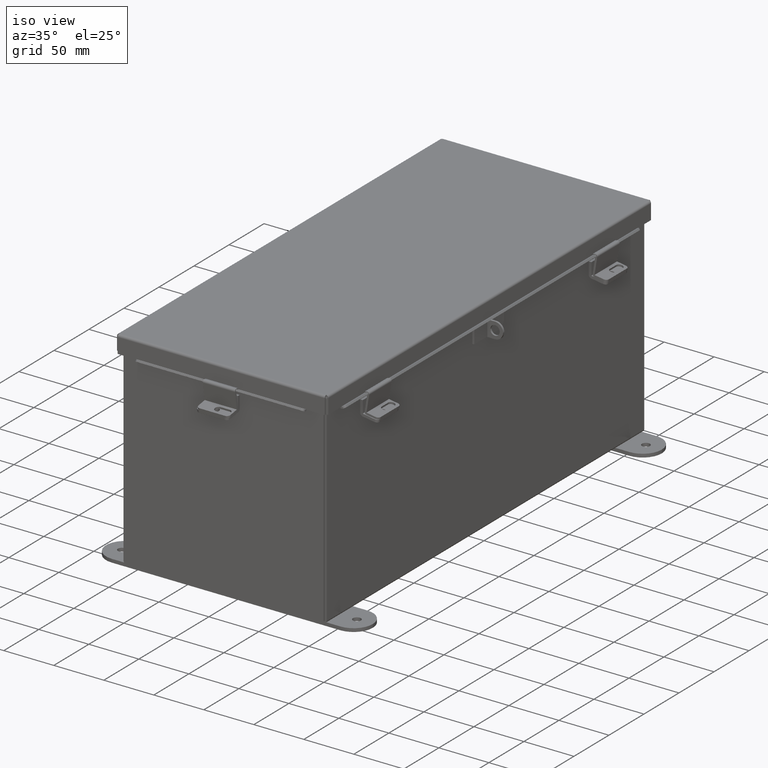
[diagram: clean part render]
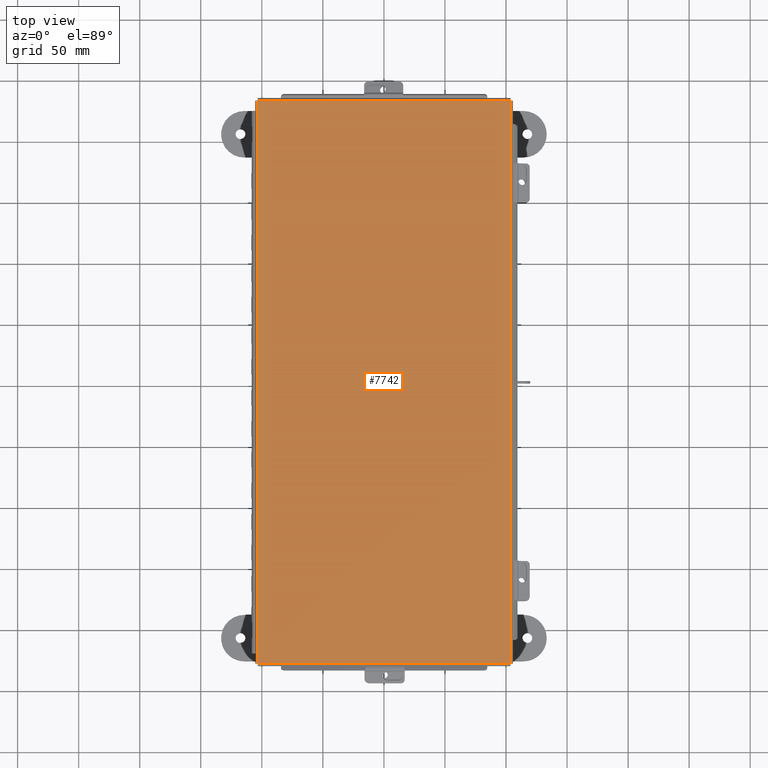
[diagram: tour spotlight — one face highlighted and labeled with its STEP entity id]
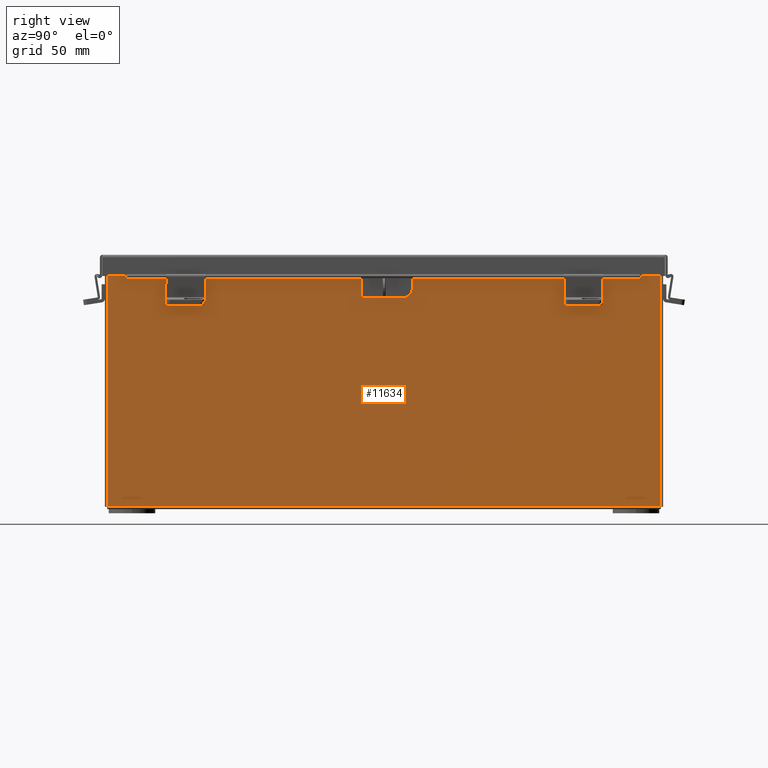
[diagram: tour spotlight — one face highlighted and labeled with its STEP entity id]
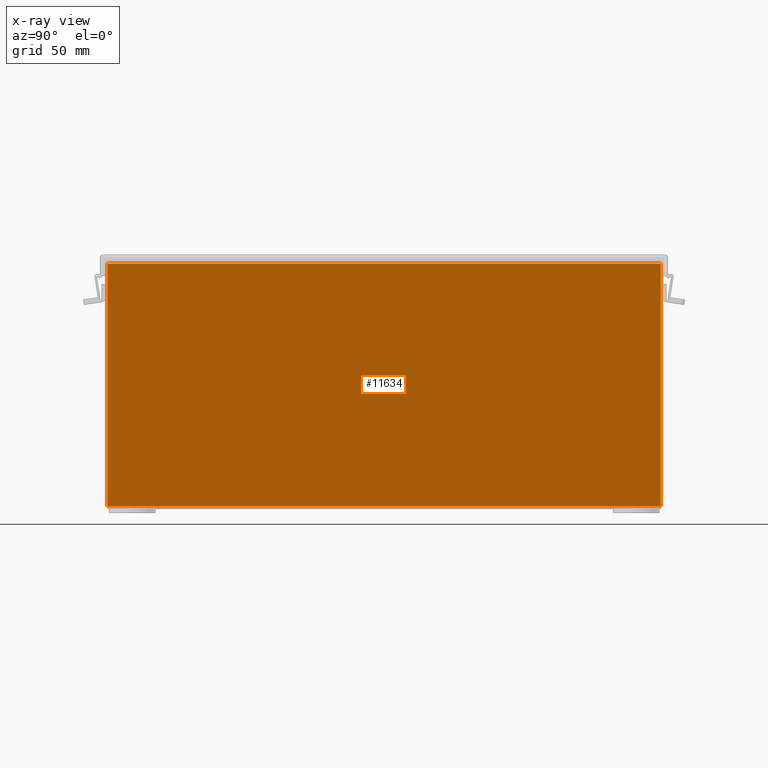
[diagram: x-ray of the same camera — body ghosted, this tour face saturated]
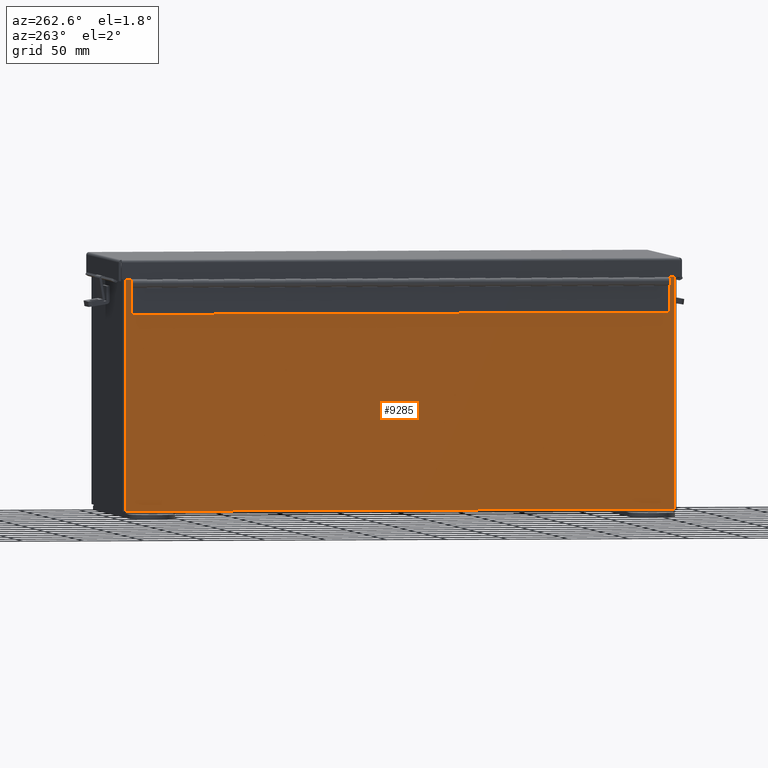
[diagram: tour spotlight — one face highlighted and labeled with its STEP entity id]
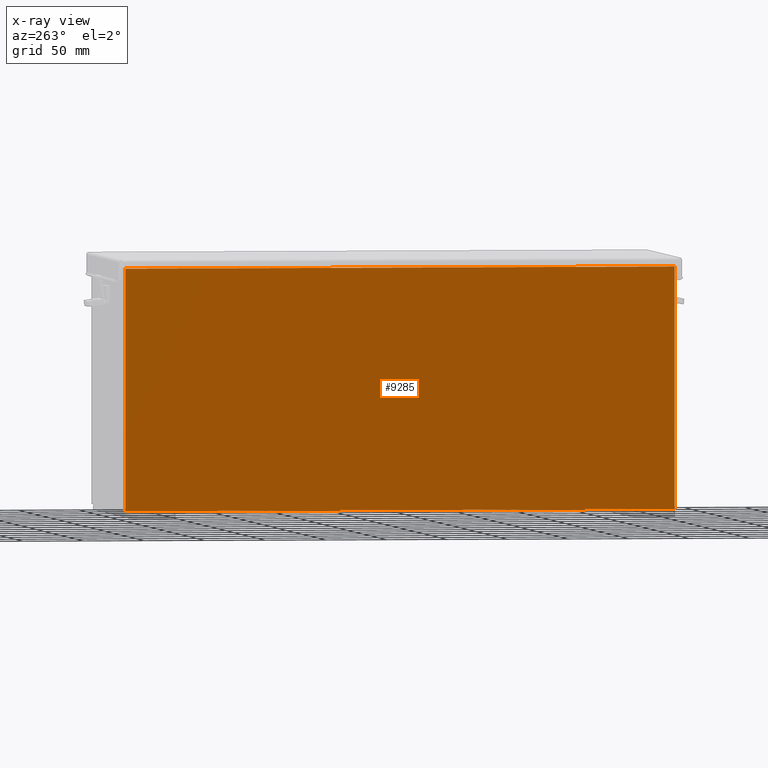
[diagram: x-ray of the same camera — body ghosted, this tour face saturated]
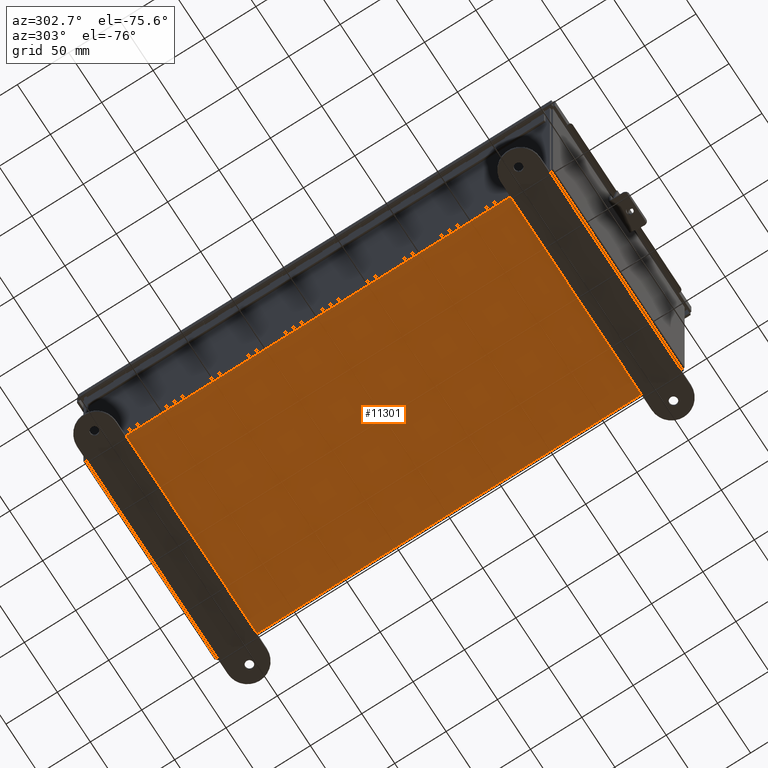
[diagram: tour spotlight — one face highlighted and labeled with its STEP entity id]
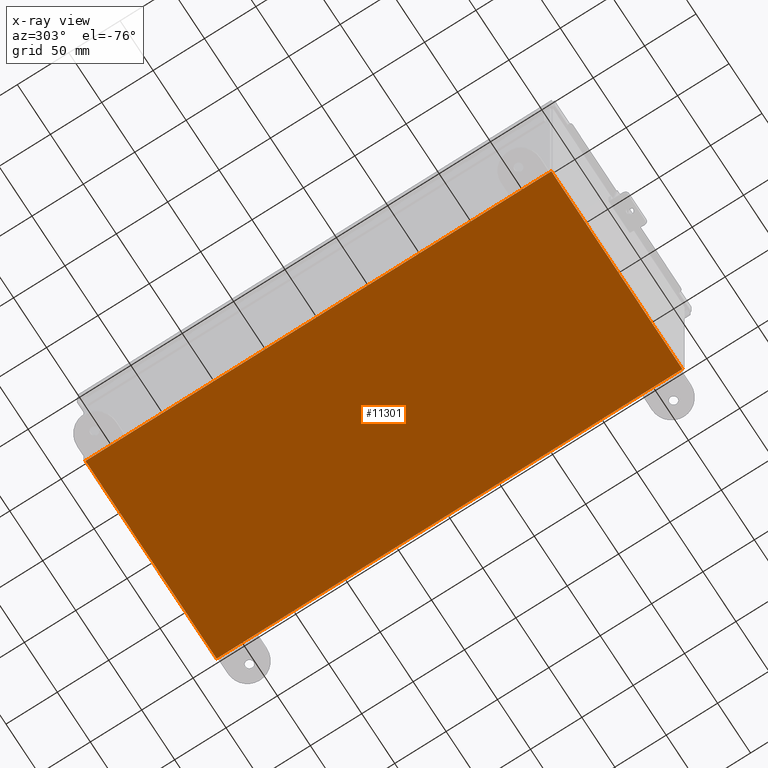
[diagram: x-ray of the same camera — body ghosted, this tour face saturated]
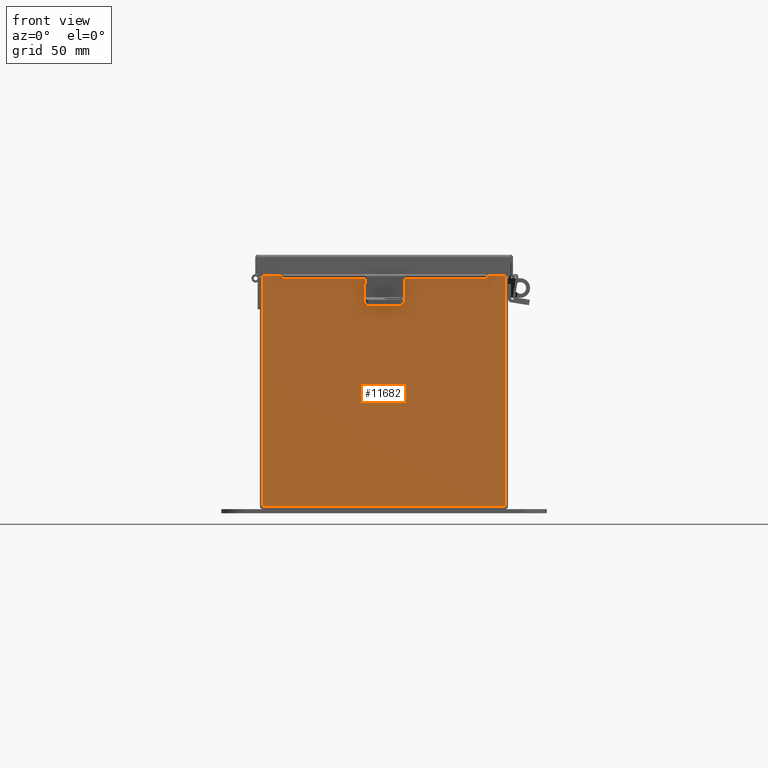
[diagram: tour spotlight — one face highlighted and labeled with its STEP entity id]
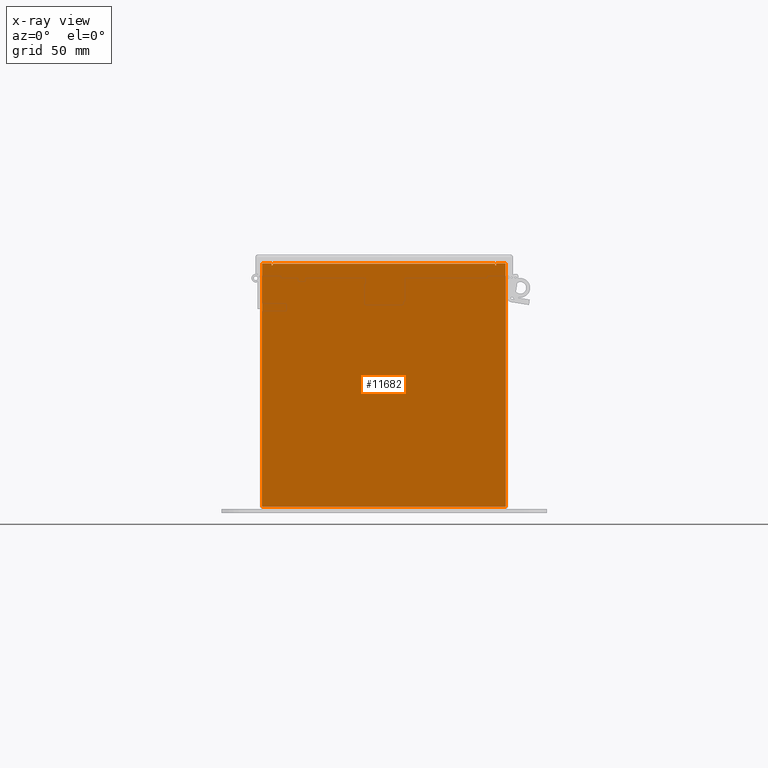
[diagram: x-ray of the same camera — body ghosted, this tour face saturated]
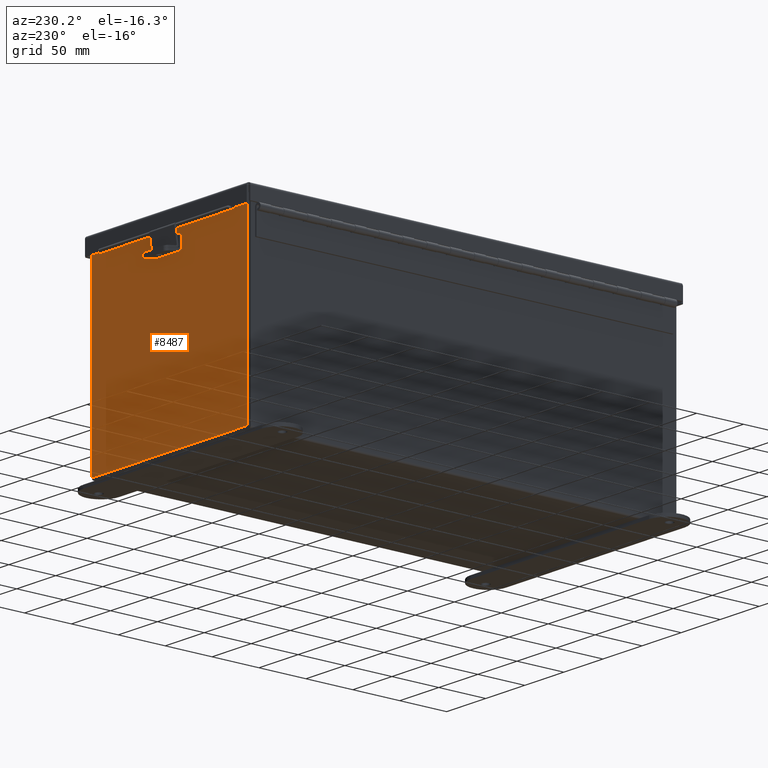
[diagram: tour spotlight — one face highlighted and labeled with its STEP entity id]
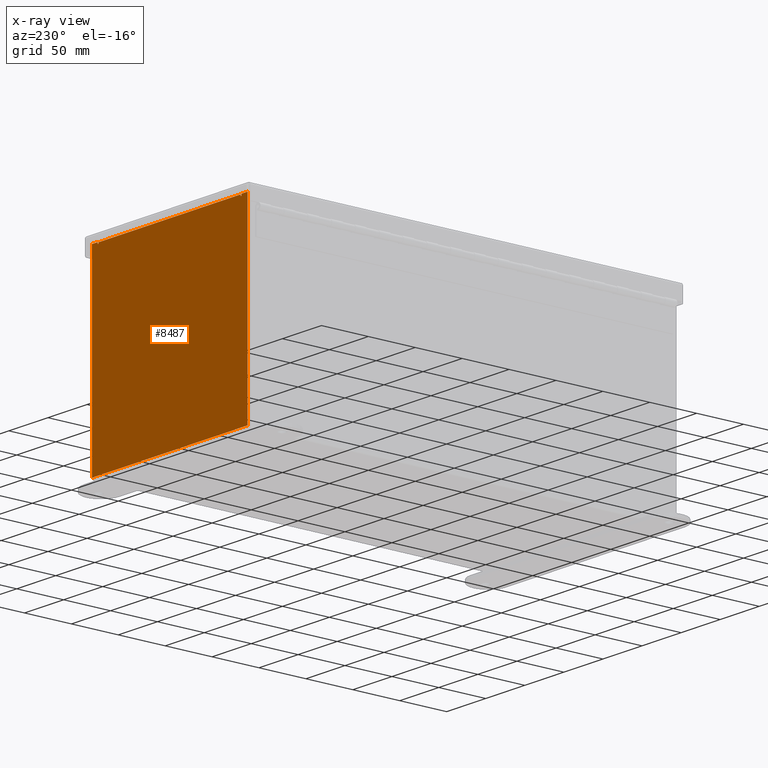
[diagram: x-ray of the same camera — body ghosted, this tour face saturated]
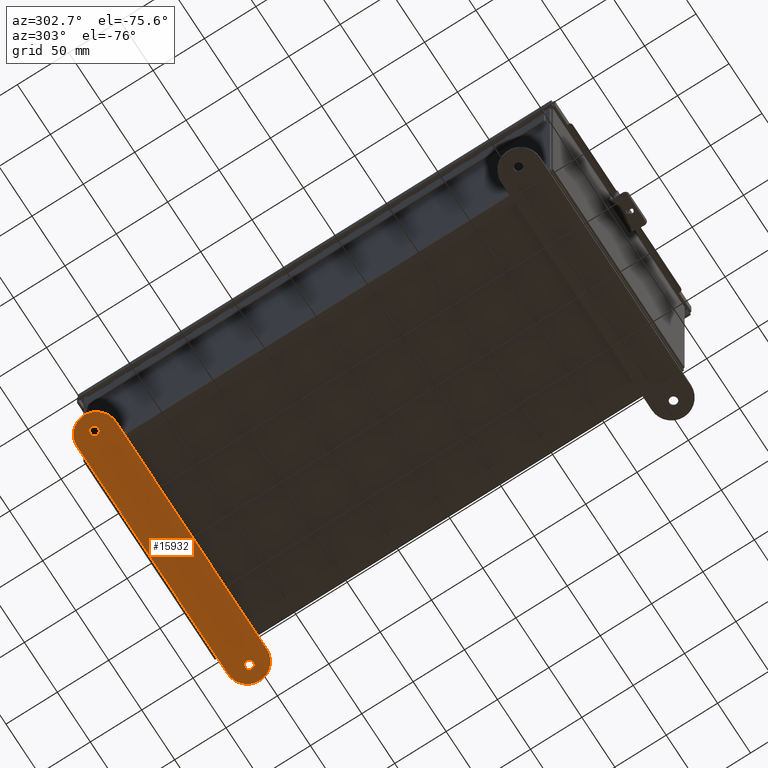
[diagram: tour spotlight — one face highlighted and labeled with its STEP entity id]
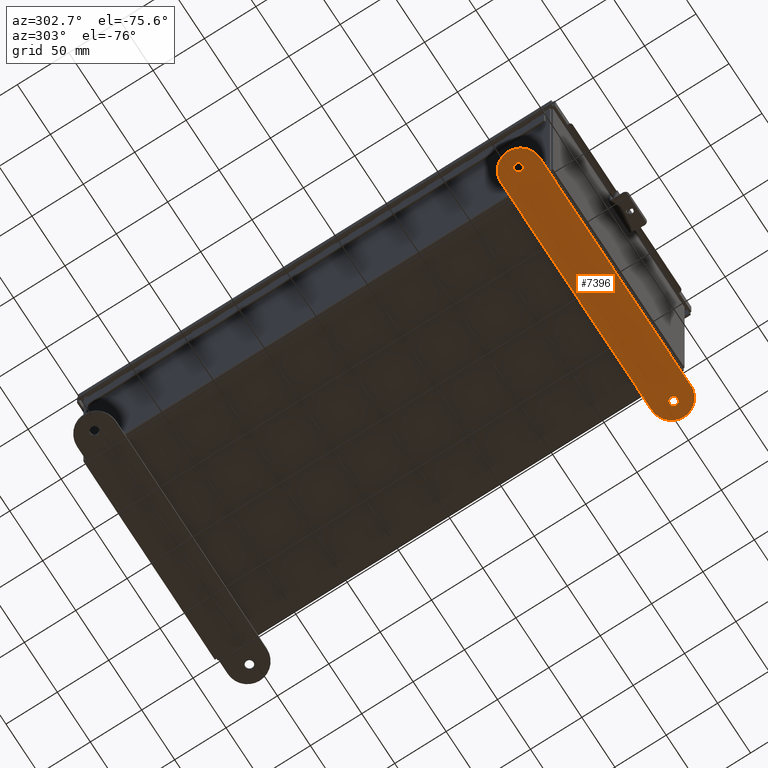
[diagram: tour spotlight — one face highlighted and labeled with its STEP entity id]
A machine part: a face-by-face anatomy tour. The part has 742 B-rep faces; the first image is the clean iso view, then the 8 largest visible faces are spotlighted one at a time (largest first), each with its STEP entity span.

Face 1 — top view, entity #7742. In plain terms, the highlighted planar face has unit normal (-0, -0, 1).
Definition (entity closure, byte-faithful):
#16 = DIRECTION ( 'NONE',  ( 1.313768580817176200E-059, 1.027984367116126100E-029, -1.000000000000000000 ) ) ;
#221 = VECTOR ( 'NONE', #13620, 39.37007874015748100 ) ;
#1895 = EDGE_CURVE ( 'NONE', #8157, #6622, #10643, .T. ) ;
#2112 = CARTESIAN_POINT ( 'NONE',  ( -4.068550000000029400, -9.074478932188133800, -0.07470000000000015500 ) ) ;
#3883 = CARTESIAN_POINT ( 'NONE',  ( 4.074478932188159600, -9.068550000000000100, -0.07469999999999797600 ) ) ;
#4354 = EDGE_CURVE ( 'NONE', #15975, #8157, #10218, .T. ) ;
#4751 = ORIENTED_EDGE ( 'NONE', *, *, #4354, .T. ) ;
#5779 = CARTESIAN_POINT ( 'NONE',  ( 4.068550000000024100, -9.068550000000000100, -0.07469999999999907300 ) ) ;
#6622 = VERTEX_POINT ( 'NONE', #13745 ) ;
#7559 = VECTOR ( 'NONE', #11116, 39.37007874015748100 ) ;
#7701 = VERTEX_POINT ( 'NONE', #8787 ) ;
#7742 = ADVANCED_FACE ( 'NONE', ( #10546 ), #19363, .T. ) ;
#8114 = LINE ( 'NONE', #12102, #221 ) ;
#8157 = VERTEX_POINT ( 'NONE', #8327 ) ;
#8327 = CARTESIAN_POINT ( 'NONE',  ( -4.068550000000025000, -9.068550000000000100, -0.07470000000000015500 ) ) ;
#8787 = CARTESIAN_POINT ( 'NONE',  ( 4.068550000000023200, 9.068550000000000100, -0.07469999999999907300 ) ) ;
#9385 = ORIENTED_EDGE ( 'NONE', *, *, #1895, .T. ) ;
#9623 = CARTESIAN_POINT ( 'NONE',  ( 4.068550000000023200, 9.074478932188133800, -0.07469999999999907300 ) ) ;
#10218 = LINE ( 'NONE', #3883, #13721 ) ;
#10415 = DIRECTION ( 'NONE',  ( -1.000000000000000000, 1.278004435517613800E-030, 0.0000000000000000000 ) ) ;
#10546 = FACE_OUTER_BOUND ( 'NONE', #18780, .T. ) ;
#10643 = LINE ( 'NONE', #2112, #13683 ) ;
#11116 = DIRECTION ( 'NONE',  ( 1.278004435517692100E-030, -1.000000000000000000, 1.018123605800868400E-029 ) ) ;
#11492 = LINE ( 'NONE', #9623, #7559 ) ;
#11965 = DIRECTION ( 'NONE',  ( -1.278004435517692100E-030, 1.000000000000000000, -1.018123605800868400E-029 ) ) ;
#12102 = CARTESIAN_POINT ( 'NONE',  ( -4.074478932188160500, 9.068550000000000100, -0.07469999999999907300 ) ) ;
#12636 = ORIENTED_EDGE ( 'NONE', *, *, #13232, .T. ) ;
#12859 = EDGE_CURVE ( 'NONE', #6622, #7701, #8114, .T. ) ;
#13232 = EDGE_CURVE ( 'NONE', #7701, #15975, #11492, .T. ) ;
#13620 = DIRECTION ( 'NONE',  ( 1.000000000000000000, -1.278004435517613800E-030, -0.0000000000000000000 ) ) ;
#13683 = VECTOR ( 'NONE', #11965, 39.37007874015748100 ) ;
#13721 = VECTOR ( 'NONE', #18928, 39.37007874015748100 ) ;
#13745 = CARTESIAN_POINT ( 'NONE',  ( -4.068550000000025000, 9.068550000000000100, -0.07469999999999033000 ) ) ;
#14869 = CARTESIAN_POINT ( 'NONE',  ( 4.268512490100411300E-018, 0.0000000000000000000, -0.07470000000000015500 ) ) ;
#15953 = ORIENTED_EDGE ( 'NONE', *, *, #12859, .T. ) ;
#15975 = VERTEX_POINT ( 'NONE', #5779 ) ;
#16732 = AXIS2_PLACEMENT_3D ( 'NONE', #14869, #16, #10415 ) ;
#18780 = EDGE_LOOP ( 'NONE', ( #15953, #12636, #4751, #9385 ) ) ;
#18928 = DIRECTION ( 'NONE',  ( -1.000000000000000000, 1.278004435517613800E-030, -0.0000000000000000000 ) ) ;
#19363 = PLANE ( 'NONE',  #16732 ) ;

Face 2 — right view, entity #11634. An x-ray twin of the same camera follows (body ghosted, this face saturated) — the face is partly hidden behind the body. In plain terms, the highlighted planar face has unit normal (-1, 0, 0).
Definition (entity closure, byte-faithful):
#96 = VECTOR ( 'NONE', #15876, 39.37007874015748100 ) ;
#508 = EDGE_CURVE ( 'NONE', #856, #15778, #8825, .T. ) ;
#528 = LINE ( 'NONE', #10196, #7958 ) ;
#716 = AXIS2_PLACEMENT_3D ( 'NONE', #7873, #6426, #16880 ) ;
#856 = VERTEX_POINT ( 'NONE', #18528 ) ;
#1286 = LINE ( 'NONE', #18946, #16668 ) ;
#2458 = CARTESIAN_POINT ( 'NONE',  ( 4.000000000000000900, 8.925299999999998200, 0.01299999999999984300 ) ) ;
#2638 = ORIENTED_EDGE ( 'NONE', *, *, #9673, .T. ) ;
#2959 = CARTESIAN_POINT ( 'NONE',  ( 4.000000000000027500, -8.925300000000000000, 7.837599999999999200 ) ) ;
#5332 = VECTOR ( 'NONE', #10851, 39.37007874015748100 ) ;
#5442 = DIRECTION ( 'NONE',  ( -0.0000000000000000000, -1.000000000000000000, -0.0000000000000000000 ) ) ;
#5975 = CARTESIAN_POINT ( 'NONE',  ( 4.000000000000000900, -8.925300000000001800, 0.01299999999999984300 ) ) ;
#6426 = DIRECTION ( 'NONE',  ( -1.000000000000000000, 0.0000000000000000000, 3.479795166820706300E-015 ) ) ;
#6766 = ORIENTED_EDGE ( 'NONE', *, *, #13406, .F. ) ;
#7873 = CARTESIAN_POINT ( 'NONE',  ( 4.000000000000000900, 0.0000000000000000000, -1.417999849211356600E-014 ) ) ;
#7958 = VECTOR ( 'NONE', #11663, 39.37007874015748100 ) ;
#8400 = FACE_OUTER_BOUND ( 'NONE', #9361, .T. ) ;
#8435 = CARTESIAN_POINT ( 'NONE',  ( 4.000000000000000900, -8.925300000000001800, -1.417999849211356600E-014 ) ) ;
#8825 = LINE ( 'NONE', #9913, #5332 ) ;
#9361 = EDGE_LOOP ( 'NONE', ( #11269, #2638, #6766, #9788 ) ) ;
#9673 = EDGE_CURVE ( 'NONE', #15778, #16015, #11941, .T. ) ;
#9788 = ORIENTED_EDGE ( 'NONE', *, *, #15209, .T. ) ;
#9913 = CARTESIAN_POINT ( 'NONE',  ( 4.000000000000027500, 8.925299999999996500, 7.837599999999999200 ) ) ;
#10196 = CARTESIAN_POINT ( 'NONE',  ( 4.000000000000000900, 8.925299999999998200, -1.293359284500424600E-014 ) ) ;
#10851 = DIRECTION ( 'NONE',  ( -0.0000000000000000000, -1.000000000000000000, -0.0000000000000000000 ) ) ;
#11269 = ORIENTED_EDGE ( 'NONE', *, *, #508, .T. ) ;
#11634 = ADVANCED_FACE ( 'NONE', ( #8400 ), #13863, .F. ) ;
#11663 = DIRECTION ( 'NONE',  ( 3.479795166820706300E-015, -1.391918066728282600E-016, 1.000000000000000000 ) ) ;
#11869 = VERTEX_POINT ( 'NONE', #2458 ) ;
#11941 = LINE ( 'NONE', #8435, #96 ) ;
#13406 = EDGE_CURVE ( 'NONE', #11869, #16015, #1286, .T. ) ;
#13863 = PLANE ( 'NONE',  #716 ) ;
#15209 = EDGE_CURVE ( 'NONE', #11869, #856, #528, .T. ) ;
#15778 = VERTEX_POINT ( 'NONE', #2959 ) ;
#15876 = DIRECTION ( 'NONE',  ( -3.479795166820706300E-015, 0.0000000000000000000, -1.000000000000000000 ) ) ;
#16015 = VERTEX_POINT ( 'NONE', #5975 ) ;
#16668 = VECTOR ( 'NONE', #5442, 39.37007874015748100 ) ;
#16880 = DIRECTION ( 'NONE',  ( 3.479795166820706300E-015, 0.0000000000000000000, 1.000000000000000000 ) ) ;
#18528 = CARTESIAN_POINT ( 'NONE',  ( 4.000000000000027500, 8.925299999999989400, 7.837599999999999200 ) ) ;
#18946 = CARTESIAN_POINT ( 'NONE',  ( 4.000000000000000900, -8.925300000000001800, 0.01299999999999984300 ) ) ;

Face 3 — auxiliary view, entity #9285. An x-ray twin of the same camera follows (body ghosted, this face saturated) — the face is partly hidden behind the body. In plain terms, the highlighted planar face has unit normal (1, 0, 0).
Definition (entity closure, byte-faithful):
#585 = ORIENTED_EDGE ( 'NONE', *, *, #5208, .F. ) ;
#894 = VECTOR ( 'NONE', #17311, 39.37007874015748100 ) ;
#1355 = LINE ( 'NONE', #10051, #894 ) ;
#1527 = CARTESIAN_POINT ( 'NONE',  ( -3.999999999999999600, 8.925299999999996500, 0.01299999999999984300 ) ) ;
#1547 = EDGE_CURVE ( 'NONE', #18662, #15011, #18892, .T. ) ;
#1675 = FACE_OUTER_BOUND ( 'NONE', #9807, .T. ) ;
#1978 = EDGE_CURVE ( 'NONE', #15011, #12941, #1355, .T. ) ;
#2110 = VECTOR ( 'NONE', #4114, 39.37007874015748100 ) ;
#3016 = DIRECTION ( 'NONE',  ( 1.065092651769884500E-031, 1.000000000000000000, -3.060791226809479400E-017 ) ) ;
#3637 = EDGE_CURVE ( 'NONE', #11857, #18662, #14448, .T. ) ;
#3992 = CARTESIAN_POINT ( 'NONE',  ( -4.000000000000027500, -8.925299999999996500, 7.837599999999999200 ) ) ;
#4055 = CARTESIAN_POINT ( 'NONE',  ( -3.999999999999999600, -8.925299999999998200, -1.293359284500424600E-014 ) ) ;
#4114 = DIRECTION ( 'NONE',  ( -3.479795166820706300E-015, 1.391918066728282600E-016, 1.000000000000000000 ) ) ;
#4587 = VECTOR ( 'NONE', #3016, 39.37007874015748100 ) ;
#5208 = EDGE_CURVE ( 'NONE', #11857, #12941, #8551, .T. ) ;
#5667 = DIRECTION ( 'NONE',  ( 0.0000000000000000000, 1.000000000000000000, 0.0000000000000000000 ) ) ;
#6103 = PLANE ( 'NONE',  #9476 ) ;
#6367 = ORIENTED_EDGE ( 'NONE', *, *, #1547, .T. ) ;
#8551 = LINE ( 'NONE', #1527, #4587 ) ;
#9094 = DIRECTION ( 'NONE',  ( 3.479795166820705900E-015, 0.0000000000000000000, -1.000000000000000000 ) ) ;
#9285 = ADVANCED_FACE ( 'NONE', ( #1675 ), #6103, .F. ) ;
#9476 = AXIS2_PLACEMENT_3D ( 'NONE', #16546, #18058, #9094 ) ;
#9807 = EDGE_LOOP ( 'NONE', ( #6367, #19321, #585, #14357 ) ) ;
#9881 = CARTESIAN_POINT ( 'NONE',  ( -3.999999999999999600, -8.925299999999998200, 0.01300000000000039000 ) ) ;
#10051 = CARTESIAN_POINT ( 'NONE',  ( -3.999999999999999600, 8.925299999999996500, -1.417999849211356600E-014 ) ) ;
#11857 = VERTEX_POINT ( 'NONE', #9881 ) ;
#12657 = CARTESIAN_POINT ( 'NONE',  ( -4.000000000000026600, 8.925299999999996500, 7.837599999999999200 ) ) ;
#12941 = VERTEX_POINT ( 'NONE', #14997 ) ;
#14357 = ORIENTED_EDGE ( 'NONE', *, *, #3637, .T. ) ;
#14448 = LINE ( 'NONE', #4055, #2110 ) ;
#14872 = VECTOR ( 'NONE', #5667, 39.37007874015748100 ) ;
#14997 = CARTESIAN_POINT ( 'NONE',  ( -3.999999999999999600, 8.925299999999996500, 0.01300000000000011600 ) ) ;
#15011 = VERTEX_POINT ( 'NONE', #12657 ) ;
#15049 = CARTESIAN_POINT ( 'NONE',  ( -4.000000000000027500, -8.925299999999992900, 7.837599999999999200 ) ) ;
#16546 = CARTESIAN_POINT ( 'NONE',  ( -3.999999999999999600, 0.0000000000000000000, -1.417999849211356600E-014 ) ) ;
#17311 = DIRECTION ( 'NONE',  ( 3.479795166820706300E-015, 0.0000000000000000000, -1.000000000000000000 ) ) ;
#18058 = DIRECTION ( 'NONE',  ( 1.000000000000000000, 0.0000000000000000000, 3.479795166820705900E-015 ) ) ;
#18662 = VERTEX_POINT ( 'NONE', #15049 ) ;
#18892 = LINE ( 'NONE', #3992, #14872 ) ;
#19321 = ORIENTED_EDGE ( 'NONE', *, *, #1978, .T. ) ;

Face 4 — auxiliary view, entity #11301. An x-ray twin of the same camera follows (body ghosted, this face saturated) — the face is partly hidden behind the body. In plain terms, the highlighted planar face has unit normal (0, 0, -1).
Definition (entity closure, byte-faithful):
#887 = VECTOR ( 'NONE', #12413, 39.37007874015748100 ) ;
#964 = LINE ( 'NONE', #9012, #8383 ) ;
#1335 = DIRECTION ( 'NONE',  ( -1.000000000000000000, 0.0000000000000000000, -0.0000000000000000000 ) ) ;
#2077 = CARTESIAN_POINT ( 'NONE',  ( -3.999999999999999600, 8.925299999999998200, -0.07470000000000000300 ) ) ;
#2333 = CARTESIAN_POINT ( 'NONE',  ( 3.912300000000000100, 8.925300000000000000, -0.07469999999999994700 ) ) ;
#2826 = CARTESIAN_POINT ( 'NONE',  ( -3.912299999999999200, 8.925299999999998200, -0.07470000000000000300 ) ) ;
#3332 = LINE ( 'NONE', #2333, #6797 ) ;
#3564 = DIRECTION ( 'NONE',  ( -1.000000000000000000, -0.0000000000000000000, -0.0000000000000000000 ) ) ;
#5270 = LINE ( 'NONE', #12475, #887 ) ;
#5439 = EDGE_CURVE ( 'NONE', #15790, #17820, #5270, .T. ) ;
#5722 = DIRECTION ( 'NONE',  ( 0.0000000000000000000, 0.0000000000000000000, -1.000000000000000000 ) ) ;
#6605 = ORIENTED_EDGE ( 'NONE', *, *, #10548, .T. ) ;
#6797 = VECTOR ( 'NONE', #11225, 39.37007874015748100 ) ;
#7381 = CARTESIAN_POINT ( 'NONE',  ( -3.912299999999999200, -8.925299999999996500, -0.07469999999999966900 ) ) ;
#8091 = CARTESIAN_POINT ( 'NONE',  ( 3.912300000000000100, 8.925299999999998200, -0.07469999999999994700 ) ) ;
#8383 = VECTOR ( 'NONE', #14969, 39.37007874015748100 ) ;
#9012 = CARTESIAN_POINT ( 'NONE',  ( -3.999999999999999600, -8.925300000000001800, -0.07470000000000000300 ) ) ;
#9472 = EDGE_CURVE ( 'NONE', #17631, #17820, #15254, .T. ) ;
#10231 = ORIENTED_EDGE ( 'NONE', *, *, #9472, .F. ) ;
#10383 = VERTEX_POINT ( 'NONE', #17917 ) ;
#10548 = EDGE_CURVE ( 'NONE', #17631, #10383, #3332, .T. ) ;
#11225 = DIRECTION ( 'NONE',  ( -0.0000000000000000000, -1.000000000000000000, -0.0000000000000000000 ) ) ;
#11301 = ADVANCED_FACE ( 'NONE', ( #18002 ), #17693, .T. ) ;
#11460 = EDGE_LOOP ( 'NONE', ( #10231, #6605, #13668, #18429 ) ) ;
#12165 = EDGE_CURVE ( 'NONE', #15790, #10383, #964, .T. ) ;
#12413 = DIRECTION ( 'NONE',  ( -0.0000000000000000000, 1.000000000000000000, -0.0000000000000000000 ) ) ;
#12475 = CARTESIAN_POINT ( 'NONE',  ( -3.912299999999999200, -8.925299999999998200, -0.07469999999999966900 ) ) ;
#13668 = ORIENTED_EDGE ( 'NONE', *, *, #12165, .F. ) ;
#14414 = AXIS2_PLACEMENT_3D ( 'NONE', #19105, #5722, #1335 ) ;
#14969 = DIRECTION ( 'NONE',  ( 1.000000000000000000, -1.365923996832131600E-016, 0.0000000000000000000 ) ) ;
#15254 = LINE ( 'NONE', #2077, #18316 ) ;
#15790 = VERTEX_POINT ( 'NONE', #7381 ) ;
#17631 = VERTEX_POINT ( 'NONE', #8091 ) ;
#17693 = PLANE ( 'NONE',  #14414 ) ;
#17820 = VERTEX_POINT ( 'NONE', #2826 ) ;
#17917 = CARTESIAN_POINT ( 'NONE',  ( 3.912300000000000100, -8.925300000000001800, -0.07470000000000000300 ) ) ;
#18002 = FACE_OUTER_BOUND ( 'NONE', #11460, .T. ) ;
#18316 = VECTOR ( 'NONE', #3564, 39.37007874015748100 ) ;
#18429 = ORIENTED_EDGE ( 'NONE', *, *, #5439, .T. ) ;
#19105 = CARTESIAN_POINT ( 'NONE',  ( 0.0000000000000000000, 0.0000000000000000000, -0.07470000000000000300 ) ) ;

Face 5 — front view, entity #11682. An x-ray twin of the same camera follows (body ghosted, this face saturated) — the face is partly hidden behind the body. In plain terms, the highlighted planar face has unit normal (-0, 1, -0).
Definition (entity closure, byte-faithful):
#811 = DIRECTION ( 'NONE',  ( 0.0000000000000000000, 0.0000000000000000000, -1.000000000000000000 ) ) ;
#853 = CARTESIAN_POINT ( 'NONE',  ( 3.582299999999994300, 2.185478394931410600E-014, 3.912299999999999700 ) ) ;
#1016 = CARTESIAN_POINT ( 'NONE',  ( -3.582300000000004900, 1.092739197465705300E-015, 3.912299999999998800 ) ) ;
#1091 = DIRECTION ( 'NONE',  ( 0.0000000000000000000, 0.0000000000000000000, -1.000000000000000000 ) ) ;
#1111 = CARTESIAN_POINT ( 'NONE',  ( -3.619649999999994300, 0.0000000000000000000, 3.874949999999999700 ) ) ;
#1162 = LINE ( 'NONE', #3155, #6017 ) ;
#1645 = LINE ( 'NONE', #13905, #16553 ) ;
#1844 = VERTEX_POINT ( 'NONE', #7097 ) ;
#2271 = VECTOR ( 'NONE', #6431, 39.37007874015748100 ) ;
#2286 = DIRECTION ( 'NONE',  ( 1.000000000000000000, 1.230560758958866800E-030, -0.0000000000000000000 ) ) ;
#2750 = CARTESIAN_POINT ( 'NONE',  ( 3.619650000000005400, 2.185478394931410600E-014, 3.874949999999998300 ) ) ;
#2960 = LINE ( 'NONE', #17279, #18385 ) ;
#3155 = CARTESIAN_POINT ( 'NONE',  ( -3.925300000000005300, 0.0000000000000000000, 3.925299999999999600 ) ) ;
#3740 = LINE ( 'NONE', #4304, #7224 ) ;
#3764 = CARTESIAN_POINT ( 'NONE',  ( -3.925300000000005300, 0.0000000000000000000, 3.925299999999999600 ) ) ;
#3766 = CIRCLE ( 'NONE', #17238, 0.01867500000000003900 ) ;
#3881 = VERTEX_POINT ( 'NONE', #8809 ) ;
#3997 = VERTEX_POINT ( 'NONE', #1111 ) ;
#4005 = VECTOR ( 'NONE', #1091, 39.37007874015748100 ) ;
#4008 = ORIENTED_EDGE ( 'NONE', *, *, #12349, .T. ) ;
#4304 = CARTESIAN_POINT ( 'NONE',  ( -3.619650000000005400, 0.0000000000000000000, 0.0000000000000000000 ) ) ;
#4436 = FACE_OUTER_BOUND ( 'NONE', #17509, .T. ) ;
#5120 = DIRECTION ( 'NONE',  ( -2.170286390199978800E-014, -1.972152263052529500E-030, -1.000000000000000000 ) ) ;
#5386 = EDGE_CURVE ( 'NONE', #18333, #9080, #9713, .T. ) ;
#5550 = EDGE_CURVE ( 'NONE', #8603, #14029, #2960, .T. ) ;
#5663 = AXIS2_PLACEMENT_3D ( 'NONE', #16997, #18538, #9556 ) ;
#6017 = VECTOR ( 'NONE', #13565, 39.37007874015748100 ) ;
#6431 = DIRECTION ( 'NONE',  ( 0.0000000000000000000, 0.0000000000000000000, -1.000000000000000000 ) ) ;
#6468 = DIRECTION ( 'NONE',  ( -1.000000000000000000, -1.230560758958866800E-030, 0.0000000000000000000 ) ) ;
#6546 = LINE ( 'NONE', #13376, #14020 ) ;
#6561 = PLANE ( 'NONE',  #5663 ) ;
#6629 = VECTOR ( 'NONE', #5120, 39.37007874015748100 ) ;
#6737 = EDGE_CURVE ( 'NONE', #15905, #15934, #18090, .T. ) ;
#6810 = DIRECTION ( 'NONE',  ( 1.000000000000000000, 1.230560758958866800E-030, 0.0000000000000000000 ) ) ;
#7097 = CARTESIAN_POINT ( 'NONE',  ( -3.925300000000005300, 0.0000000000000000000, -3.925299999999999600 ) ) ;
#7224 = VECTOR ( 'NONE', #11691, 39.37007874015748100 ) ;
#7227 = DIRECTION ( 'NONE',  ( 1.230560758958866800E-030, 1.000000000000000000, -0.0000000000000000000 ) ) ;
#7252 = VECTOR ( 'NONE', #2286, 39.37007874015748100 ) ;
#8146 = ORIENTED_EDGE ( 'NONE', *, *, #8868, .F. ) ;
#8210 = ORIENTED_EDGE ( 'NONE', *, *, #8897, .T. ) ;
#8425 = CARTESIAN_POINT ( 'NONE',  ( -3.619650000000005400, 0.0000000000000000000, 3.925299999999998700 ) ) ;
#8603 = VERTEX_POINT ( 'NONE', #3764 ) ;
#8809 = CARTESIAN_POINT ( 'NONE',  ( 3.925299999999994200, 2.185478394931410600E-014, 3.925299999999998700 ) ) ;
#8868 = EDGE_CURVE ( 'NONE', #15934, #18802, #3766, .T. ) ;
#8897 = EDGE_CURVE ( 'NONE', #18333, #10540, #11652, .T. ) ;
#9080 = VERTEX_POINT ( 'NONE', #10088 ) ;
#9556 = DIRECTION ( 'NONE',  ( 0.0000000000000000000, 0.0000000000000000000, -1.000000000000000000 ) ) ;
#9692 = DIRECTION ( 'NONE',  ( 1.230560758958866800E-030, 1.000000000000000000, -0.0000000000000000000 ) ) ;
#9713 = LINE ( 'NONE', #10863, #2271 ) ;
#9834 = LINE ( 'NONE', #18933, #17321 ) ;
#9983 = ORIENTED_EDGE ( 'NONE', *, *, #18457, .F. ) ;
#10088 = CARTESIAN_POINT ( 'NONE',  ( -3.582299999999994300, 0.0000000000000000000, 3.874949999999999700 ) ) ;
#10159 = CARTESIAN_POINT ( 'NONE',  ( 3.619649999999995100, 2.185478394931410600E-014, 3.925299999999999600 ) ) ;
#10540 = VERTEX_POINT ( 'NONE', #853 ) ;
#10616 = EDGE_CURVE ( 'NONE', #15905, #3881, #9834, .T. ) ;
#10863 = CARTESIAN_POINT ( 'NONE',  ( -3.582300000000004900, 0.0000000000000000000, 0.0000000000000000000 ) ) ;
#11212 = EDGE_CURVE ( 'NONE', #3881, #18616, #12368, .T. ) ;
#11412 = DIRECTION ( 'NONE',  ( 1.000000000000000000, 1.230560758958866800E-030, 0.0000000000000000000 ) ) ;
#11494 = ORIENTED_EDGE ( 'NONE', *, *, #6737, .F. ) ;
#11652 = LINE ( 'NONE', #17144, #7252 ) ;
#11682 = ADVANCED_FACE ( 'NONE', ( #4436 ), #6561, .F. ) ;
#11691 = DIRECTION ( 'NONE',  ( 0.0000000000000000000, 0.0000000000000000000, 1.000000000000000000 ) ) ;
#12349 = EDGE_CURVE ( 'NONE', #18616, #1844, #1645, .T. ) ;
#12368 = LINE ( 'NONE', #15988, #4005 ) ;
#12835 = EDGE_CURVE ( 'NONE', #1844, #8603, #1162, .T. ) ;
#13376 = CARTESIAN_POINT ( 'NONE',  ( 3.582299999999994300, 0.0000000000000000000, 1.092739197465705300E-014 ) ) ;
#13565 = DIRECTION ( 'NONE',  ( 0.0000000000000000000, 0.0000000000000000000, 1.000000000000000000 ) ) ;
#13905 = CARTESIAN_POINT ( 'NONE',  ( -3.925300000000005300, 0.0000000000000000000, -3.925299999999999600 ) ) ;
#14020 = VECTOR ( 'NONE', #16395, 39.37007874015748100 ) ;
#14023 = AXIS2_PLACEMENT_3D ( 'NONE', #16157, #7227, #17681 ) ;
#14029 = VERTEX_POINT ( 'NONE', #8425 ) ;
#14068 = CARTESIAN_POINT ( 'NONE',  ( 3.619649999999910300, 0.0000000000000000000, -7.867722221753078700E-014 ) ) ;
#14091 = ORIENTED_EDGE ( 'NONE', *, *, #10616, .T. ) ;
#14144 = ORIENTED_EDGE ( 'NONE', *, *, #11212, .T. ) ;
#15287 = EDGE_CURVE ( 'NONE', #18802, #10540, #6546, .T. ) ;
#15309 = CIRCLE ( 'NONE', #14023, 0.01867500000000003900 ) ;
#15333 = ORIENTED_EDGE ( 'NONE', *, *, #15941, .F. ) ;
#15649 = CARTESIAN_POINT ( 'NONE',  ( 3.582300000000004900, 2.185478394931410600E-014, 3.874949999999998300 ) ) ;
#15711 = ORIENTED_EDGE ( 'NONE', *, *, #5550, .T. ) ;
#15905 = VERTEX_POINT ( 'NONE', #10159 ) ;
#15934 = VERTEX_POINT ( 'NONE', #2750 ) ;
#15941 = EDGE_CURVE ( 'NONE', #3997, #14029, #3740, .T. ) ;
#15988 = CARTESIAN_POINT ( 'NONE',  ( 3.925299999999994200, 2.185478394931410600E-014, 3.925299999999998700 ) ) ;
#16105 = ORIENTED_EDGE ( 'NONE', *, *, #15287, .F. ) ;
#16157 = CARTESIAN_POINT ( 'NONE',  ( -3.600974999999994300, 0.0000000000000000000, 3.874949999999999700 ) ) ;
#16395 = DIRECTION ( 'NONE',  ( 0.0000000000000000000, 0.0000000000000000000, 1.000000000000000000 ) ) ;
#16484 = CARTESIAN_POINT ( 'NONE',  ( 3.925299999999994200, 2.185478394931410600E-014, -3.925299999999999600 ) ) ;
#16553 = VECTOR ( 'NONE', #6468, 39.37007874015748100 ) ;
#16997 = CARTESIAN_POINT ( 'NONE',  ( 0.0000000000000000000, 0.0000000000000000000, 0.0000000000000000000 ) ) ;
#17144 = CARTESIAN_POINT ( 'NONE',  ( -3.582300000000004900, 1.092739197465705300E-015, 3.912299999999998800 ) ) ;
#17238 = AXIS2_PLACEMENT_3D ( 'NONE', #18685, #9692, #811 ) ;
#17279 = CARTESIAN_POINT ( 'NONE',  ( -3.925300000000005300, 0.0000000000000000000, 3.925299999999999600 ) ) ;
#17321 = VECTOR ( 'NONE', #11412, 39.37007874015748100 ) ;
#17509 = EDGE_LOOP ( 'NONE', ( #15333, #9983, #18627, #8210, #16105, #8146, #11494, #14091, #14144, #4008, #18480, #15711 ) ) ;
#17681 = DIRECTION ( 'NONE',  ( 0.0000000000000000000, 0.0000000000000000000, -1.000000000000000000 ) ) ;
#18090 = LINE ( 'NONE', #14068, #6629 ) ;
#18333 = VERTEX_POINT ( 'NONE', #1016 ) ;
#18385 = VECTOR ( 'NONE', #6810, 39.37007874015748100 ) ;
#18457 = EDGE_CURVE ( 'NONE', #9080, #3997, #15309, .T. ) ;
#18480 = ORIENTED_EDGE ( 'NONE', *, *, #12835, .T. ) ;
#18538 = DIRECTION ( 'NONE',  ( -1.230560758958866800E-030, -1.000000000000000000, -0.0000000000000000000 ) ) ;
#18616 = VERTEX_POINT ( 'NONE', #16484 ) ;
#18627 = ORIENTED_EDGE ( 'NONE', *, *, #5386, .F. ) ;
#18685 = CARTESIAN_POINT ( 'NONE',  ( 3.600975000000005400, 2.185478394931410600E-014, 3.874949999999998300 ) ) ;
#18802 = VERTEX_POINT ( 'NONE', #15649 ) ;
#18933 = CARTESIAN_POINT ( 'NONE',  ( -3.925300000000005300, 0.0000000000000000000, 3.925299999999999600 ) ) ;

Face 6 — auxiliary view, entity #8487. An x-ray twin of the same camera follows (body ghosted, this face saturated) — the face is partly hidden behind the body. In plain terms, the highlighted planar face has unit normal (0, -1, 0).
Definition (entity closure, byte-faithful):
#102 = DIRECTION ( 'NONE',  ( -0.0000000000000000000, -0.0000000000000000000, 1.000000000000000000 ) ) ;
#537 = DIRECTION ( 'NONE',  ( 0.0000000000000000000, -1.000000000000000000, 0.0000000000000000000 ) ) ;
#623 = VERTEX_POINT ( 'NONE', #17696 ) ;
#790 = VERTEX_POINT ( 'NONE', #12911 ) ;
#939 = CARTESIAN_POINT ( 'NONE',  ( 3.925299999999999100, 0.0000000000000000000, -3.925300000000000500 ) ) ;
#1422 = LINE ( 'NONE', #13446, #12788 ) ;
#1480 = VERTEX_POINT ( 'NONE', #16220 ) ;
#1717 = VECTOR ( 'NONE', #13494, 39.37007874015748100 ) ;
#1747 = EDGE_CURVE ( 'NONE', #790, #6848, #16031, .T. ) ;
#2010 = DIRECTION ( 'NONE',  ( 1.000000000000000000, 0.0000000000000000000, 0.0000000000000000000 ) ) ;
#2452 = VECTOR ( 'NONE', #12022, 39.37007874015748100 ) ;
#2539 = ORIENTED_EDGE ( 'NONE', *, *, #5811, .F. ) ;
#2648 = CARTESIAN_POINT ( 'NONE',  ( 3.600974999999999100, 0.0000000000000000000, 3.874949999999999700 ) ) ;
#2748 = LINE ( 'NONE', #13032, #14642 ) ;
#3148 = CARTESIAN_POINT ( 'NONE',  ( -3.925300000000000500, 0.0000000000000000000, 3.925299999999998700 ) ) ;
#3190 = AXIS2_PLACEMENT_3D ( 'NONE', #2648, #13050, #4147 ) ;
#3796 = CARTESIAN_POINT ( 'NONE',  ( -3.925300000000000500, 0.0000000000000000000, -3.925300000000000500 ) ) ;
#4133 = DIRECTION ( 'NONE',  ( 1.000000000000000000, 0.0000000000000000000, 0.0000000000000000000 ) ) ;
#4147 = DIRECTION ( 'NONE',  ( 0.0000000000000000000, 0.0000000000000000000, -1.000000000000000000 ) ) ;
#4320 = VERTEX_POINT ( 'NONE', #8373 ) ;
#4466 = ORIENTED_EDGE ( 'NONE', *, *, #12145, .F. ) ;
#4945 = LINE ( 'NONE', #6953, #8910 ) ;
#5635 = LINE ( 'NONE', #14951, #1717 ) ;
#5740 = ORIENTED_EDGE ( 'NONE', *, *, #14305, .F. ) ;
#5770 = DIRECTION ( 'NONE',  ( 0.0000000000000000000, 0.0000000000000000000, -1.000000000000000000 ) ) ;
#5811 = EDGE_CURVE ( 'NONE', #1480, #11478, #7136, .T. ) ;
#5919 = LINE ( 'NONE', #3148, #2452 ) ;
#5973 = CARTESIAN_POINT ( 'NONE',  ( -3.582300000000000000, 0.0000000000000000000, 3.874949999999999700 ) ) ;
#6007 = ORIENTED_EDGE ( 'NONE', *, *, #13819, .T. ) ;
#6083 = CARTESIAN_POINT ( 'NONE',  ( 3.582299999999999200, 0.0000000000000000000, 3.874949999999999700 ) ) ;
#6195 = EDGE_CURVE ( 'NONE', #6848, #4320, #15528, .T. ) ;
#6352 = VERTEX_POINT ( 'NONE', #13085 ) ;
#6495 = DIRECTION ( 'NONE',  ( -0.0000000000000000000, 1.000000000000000000, -0.0000000000000000000 ) ) ;
#6536 = EDGE_CURVE ( 'NONE', #6352, #790, #5919, .T. ) ;
#6848 = VERTEX_POINT ( 'NONE', #939 ) ;
#6953 = CARTESIAN_POINT ( 'NONE',  ( 3.582299999999999200, 0.0000000000000000000, 0.0000000000000000000 ) ) ;
#7136 = LINE ( 'NONE', #7520, #14610 ) ;
#7273 = CARTESIAN_POINT ( 'NONE',  ( -3.619650000000000500, 0.0000000000000000000, 3.874949999999999700 ) ) ;
#7377 = CARTESIAN_POINT ( 'NONE',  ( 3.582299999999999200, 0.0000000000000000000, 3.912299999999998800 ) ) ;
#7520 = CARTESIAN_POINT ( 'NONE',  ( -3.582300000000000000, 0.0000000000000000000, 0.0000000000000000000 ) ) ;
#8088 = VECTOR ( 'NONE', #5770, 39.37007874015748100 ) ;
#8373 = CARTESIAN_POINT ( 'NONE',  ( -3.925300000000000500, 0.0000000000000000000, -3.925300000000000500 ) ) ;
#8487 = ADVANCED_FACE ( 'NONE', ( #10764 ), #12343, .F. ) ;
#8910 = VECTOR ( 'NONE', #14385, 39.37007874015748100 ) ;
#8966 = CARTESIAN_POINT ( 'NONE',  ( -3.925300000000000500, 0.0000000000000000000, 3.925299999999998700 ) ) ;
#9001 = DIRECTION ( 'NONE',  ( 0.0000000000000000000, 0.0000000000000000000, -1.000000000000000000 ) ) ;
#9592 = CARTESIAN_POINT ( 'NONE',  ( 3.619649999999999100, 0.0000000000000000000, 3.874949999999999700 ) ) ;
#9894 = ORIENTED_EDGE ( 'NONE', *, *, #6195, .T. ) ;
#9996 = AXIS2_PLACEMENT_3D ( 'NONE', #15446, #6495, #16938 ) ;
#10133 = EDGE_CURVE ( 'NONE', #17429, #17243, #4945, .T. ) ;
#10402 = VERTEX_POINT ( 'NONE', #8966 ) ;
#10448 = DIRECTION ( 'NONE',  ( -2.170286390199978800E-014, 0.0000000000000000000, -1.000000000000000000 ) ) ;
#10497 = CARTESIAN_POINT ( 'NONE',  ( -3.925300000000000500, 0.0000000000000000000, 3.925299999999998700 ) ) ;
#10672 = EDGE_CURVE ( 'NONE', #17635, #17429, #12849, .T. ) ;
#10764 = FACE_OUTER_BOUND ( 'NONE', #18357, .T. ) ;
#10853 = CARTESIAN_POINT ( 'NONE',  ( 0.0000000000000000000, 0.0000000000000000000, 0.0000000000000000000 ) ) ;
#10914 = DIRECTION ( 'NONE',  ( 0.0000000000000000000, -0.0000000000000000000, -1.000000000000000000 ) ) ;
#10945 = ORIENTED_EDGE ( 'NONE', *, *, #6536, .T. ) ;
#11134 = DIRECTION ( 'NONE',  ( -1.000000000000000000, -0.0000000000000000000, -0.0000000000000000000 ) ) ;
#11478 = VERTEX_POINT ( 'NONE', #5973 ) ;
#11517 = VECTOR ( 'NONE', #11134, 39.37007874015748100 ) ;
#11759 = ORIENTED_EDGE ( 'NONE', *, *, #10672, .F. ) ;
#12022 = DIRECTION ( 'NONE',  ( 1.000000000000000000, 0.0000000000000000000, 0.0000000000000000000 ) ) ;
#12030 = VERTEX_POINT ( 'NONE', #7273 ) ;
#12145 = EDGE_CURVE ( 'NONE', #6352, #17635, #1422, .T. ) ;
#12343 = PLANE ( 'NONE',  #14609 ) ;
#12788 = VECTOR ( 'NONE', #10448, 39.37007874015748100 ) ;
#12849 = CIRCLE ( 'NONE', #3190, 0.01867500000000003900 ) ;
#12911 = CARTESIAN_POINT ( 'NONE',  ( 3.925299999999999100, 0.0000000000000000000, 3.925299999999998700 ) ) ;
#12939 = ORIENTED_EDGE ( 'NONE', *, *, #17712, .T. ) ;
#13032 = CARTESIAN_POINT ( 'NONE',  ( -3.582300000000000000, 1.092739197465705300E-015, 3.912299999999998800 ) ) ;
#13041 = VECTOR ( 'NONE', #102, 39.37007874015748100 ) ;
#13050 = DIRECTION ( 'NONE',  ( -0.0000000000000000000, 1.000000000000000000, -0.0000000000000000000 ) ) ;
#13085 = CARTESIAN_POINT ( 'NONE',  ( 3.619650000000000500, 0.0000000000000000000, 3.925299999999998700 ) ) ;
#13446 = CARTESIAN_POINT ( 'NONE',  ( 3.619649999999915200, 0.0000000000000000000, -7.867722221753078700E-014 ) ) ;
#13494 = DIRECTION ( 'NONE',  ( 0.0000000000000000000, 0.0000000000000000000, 1.000000000000000000 ) ) ;
#13521 = LINE ( 'NONE', #10497, #13041 ) ;
#13596 = LINE ( 'NONE', #16864, #17583 ) ;
#13819 = EDGE_CURVE ( 'NONE', #10402, #623, #13596, .T. ) ;
#14042 = CARTESIAN_POINT ( 'NONE',  ( 3.925299999999999100, 0.0000000000000000000, 3.925299999999998700 ) ) ;
#14305 = EDGE_CURVE ( 'NONE', #12030, #623, #5635, .T. ) ;
#14385 = DIRECTION ( 'NONE',  ( 0.0000000000000000000, 0.0000000000000000000, 1.000000000000000000 ) ) ;
#14609 = AXIS2_PLACEMENT_3D ( 'NONE', #10853, #537, #10914 ) ;
#14610 = VECTOR ( 'NONE', #9001, 39.37007874015748100 ) ;
#14642 = VECTOR ( 'NONE', #4133, 39.37007874015748100 ) ;
#14920 = CIRCLE ( 'NONE', #9996, 0.01867500000000003900 ) ;
#14951 = CARTESIAN_POINT ( 'NONE',  ( -3.619650000000000500, 0.0000000000000000000, 0.0000000000000000000 ) ) ;
#15311 = ORIENTED_EDGE ( 'NONE', *, *, #1747, .T. ) ;
#15446 = CARTESIAN_POINT ( 'NONE',  ( -3.600975000000000000, 0.0000000000000000000, 3.874949999999999700 ) ) ;
#15528 = LINE ( 'NONE', #3796, #11517 ) ;
#15823 = EDGE_CURVE ( 'NONE', #4320, #10402, #13521, .T. ) ;
#16031 = LINE ( 'NONE', #14042, #8088 ) ;
#16219 = EDGE_CURVE ( 'NONE', #11478, #12030, #14920, .T. ) ;
#16220 = CARTESIAN_POINT ( 'NONE',  ( -3.582300000000000000, 1.092739197465705300E-015, 3.912299999999998800 ) ) ;
#16864 = CARTESIAN_POINT ( 'NONE',  ( -3.925300000000000500, 0.0000000000000000000, 3.925299999999998700 ) ) ;
#16938 = DIRECTION ( 'NONE',  ( 0.0000000000000000000, 0.0000000000000000000, -1.000000000000000000 ) ) ;
#17066 = ORIENTED_EDGE ( 'NONE', *, *, #16219, .F. ) ;
#17243 = VERTEX_POINT ( 'NONE', #7377 ) ;
#17429 = VERTEX_POINT ( 'NONE', #6083 ) ;
#17583 = VECTOR ( 'NONE', #2010, 39.37007874015748100 ) ;
#17635 = VERTEX_POINT ( 'NONE', #9592 ) ;
#17696 = CARTESIAN_POINT ( 'NONE',  ( -3.619650000000000500, 0.0000000000000000000, 3.925299999999998700 ) ) ;
#17712 = EDGE_CURVE ( 'NONE', #1480, #17243, #2748, .T. ) ;
#18357 = EDGE_LOOP ( 'NONE', ( #5740, #17066, #2539, #12939, #18569, #11759, #4466, #10945, #15311, #9894, #19361, #6007 ) ) ;
#18569 = ORIENTED_EDGE ( 'NONE', *, *, #10133, .F. ) ;
#19361 = ORIENTED_EDGE ( 'NONE', *, *, #15823, .T. ) ;

Face 7 — auxiliary view, entity #15932. In plain terms, the highlighted planar face has unit normal (0, 0, 1).
Definition (entity closure, byte-faithful):
#261 = FACE_BOUND ( 'NONE', #11448, .T. ) ;
#278 = CARTESIAN_POINT ( 'NONE',  ( -4.499999999999999100, 1.162094064949612800, 0.0000000000000000000 ) ) ;
#414 = DIRECTION ( 'NONE',  ( -1.000000000000000000, 0.0000000000000000000, 0.0000000000000000000 ) ) ;
#536 = ORIENTED_EDGE ( 'NONE', *, *, #12427, .T. ) ;
#649 = VERTEX_POINT ( 'NONE', #17519 ) ;
#1323 = DIRECTION ( 'NONE',  ( -1.000000000000000000, 0.0000000000000000000, 0.0000000000000000000 ) ) ;
#1327 = CARTESIAN_POINT ( 'NONE',  ( 4.499999999999999100, 0.4120940649496122000, 0.0000000000000000000 ) ) ;
#1416 = VERTEX_POINT ( 'NONE', #1926 ) ;
#1637 = AXIS2_PLACEMENT_3D ( 'NONE', #10686, #1800, #12174 ) ;
#1800 = DIRECTION ( 'NONE',  ( 0.0000000000000000000, 0.0000000000000000000, 1.000000000000000000 ) ) ;
#1803 = EDGE_CURVE ( 'NONE', #649, #13415, #7158, .T. ) ;
#1822 = DIRECTION ( 'NONE',  ( 0.0000000000000000000, 0.0000000000000000000, 1.000000000000000000 ) ) ;
#1926 = CARTESIAN_POINT ( 'NONE',  ( -4.468500000000000600, 0.4120940649496089300, 0.0000000000000000000 ) ) ;
#2063 = VERTEX_POINT ( 'NONE', #278 ) ;
#2381 = CARTESIAN_POINT ( 'NONE',  ( 4.499999999999999100, 0.4120940649496122000, 0.0000000000000000000 ) ) ;
#2495 = VERTEX_POINT ( 'NONE', #18664 ) ;
#2524 = DIRECTION ( 'NONE',  ( 0.0000000000000000000, 0.0000000000000000000, 1.000000000000000000 ) ) ;
#2695 = VERTEX_POINT ( 'NONE', #2842 ) ;
#2811 = DIRECTION ( 'NONE',  ( 0.0000000000000000000, 0.0000000000000000000, -1.000000000000000000 ) ) ;
#2842 = CARTESIAN_POINT ( 'NONE',  ( 4.781499999999999400, 0.4120940649496089300, 0.0000000000000000000 ) ) ;
#3585 = CIRCLE ( 'NONE', #14443, 0.7500000000000010000 ) ;
#3599 = LINE ( 'NONE', #12735, #10119 ) ;
#4032 = CARTESIAN_POINT ( 'NONE',  ( 5.250000000000000900, 0.4120940649496122000, 0.0000000000000000000 ) ) ;
#5158 = DIRECTION ( 'NONE',  ( 0.0000000000000000000, 0.0000000000000000000, 1.000000000000000000 ) ) ;
#6192 = VERTEX_POINT ( 'NONE', #14152 ) ;
#6221 = CARTESIAN_POINT ( 'NONE',  ( -4.499999999999999100, -0.3379059350503871900, 0.0000000000000000000 ) ) ;
#6453 = AXIS2_PLACEMENT_3D ( 'NONE', #7279, #17733, #8762 ) ;
#6795 = ORIENTED_EDGE ( 'NONE', *, *, #13738, .T. ) ;
#7046 = EDGE_CURVE ( 'NONE', #2695, #2495, #17834, .T. ) ;
#7158 = CIRCLE ( 'NONE', #18014, 0.7500000000000010000 ) ;
#7279 = CARTESIAN_POINT ( 'NONE',  ( 4.625000000000000000, 0.4120940649496089300, 0.0000000000000000000 ) ) ;
#7674 = VERTEX_POINT ( 'NONE', #14615 ) ;
#7732 = DIRECTION ( 'NONE',  ( 1.000000000000000000, -1.214154663850783900E-016, 0.0000000000000000000 ) ) ;
#8135 = CIRCLE ( 'NONE', #9929, 0.7499999999999998900 ) ;
#8370 = AXIS2_PLACEMENT_3D ( 'NONE', #1327, #2811, #13213 ) ;
#8692 = ORIENTED_EDGE ( 'NONE', *, *, #7046, .T. ) ;
#8762 = DIRECTION ( 'NONE',  ( -1.000000000000000000, 0.0000000000000000000, 0.0000000000000000000 ) ) ;
#9304 = DIRECTION ( 'NONE',  ( 0.0000000000000000000, 0.0000000000000000000, -1.000000000000000000 ) ) ;
#9929 = AXIS2_PLACEMENT_3D ( 'NONE', #14101, #5158, #15619 ) ;
#10119 = VECTOR ( 'NONE', #18745, 39.37007874015748100 ) ;
#10422 = ORIENTED_EDGE ( 'NONE', *, *, #14356, .F. ) ;
#10686 = CARTESIAN_POINT ( 'NONE',  ( -4.625000000000000000, 0.4120940649496089300, 0.0000000000000000000 ) ) ;
#10719 = CARTESIAN_POINT ( 'NONE',  ( 4.499999999999999100, 0.4120940649496122000, 0.0000000000000000000 ) ) ;
#11415 = CARTESIAN_POINT ( 'NONE',  ( -4.625000000000000000, 0.4120940649496089300, 0.0000000000000000000 ) ) ;
#11448 = EDGE_LOOP ( 'NONE', ( #8692, #17730 ) ) ;
#11838 = VECTOR ( 'NONE', #7732, 39.37007874015748100 ) ;
#12174 = DIRECTION ( 'NONE',  ( 1.000000000000000000, 0.0000000000000000000, 0.0000000000000000000 ) ) ;
#12192 = DIRECTION ( 'NONE',  ( -1.000000000000000000, 0.0000000000000000000, 0.0000000000000000000 ) ) ;
#12218 = EDGE_CURVE ( 'NONE', #7674, #649, #14919, .T. ) ;
#12427 = EDGE_CURVE ( 'NONE', #2063, #7674, #8135, .T. ) ;
#12615 = CIRCLE ( 'NONE', #1637, 0.1564999999999992800 ) ;
#12735 = CARTESIAN_POINT ( 'NONE',  ( -4.499999999999999100, 1.162094064949612800, 0.0000000000000000000 ) ) ;
#12916 = DIRECTION ( 'NONE',  ( 1.000000000000000000, 0.0000000000000000000, 0.0000000000000000000 ) ) ;
#13065 = EDGE_CURVE ( 'NONE', #2495, #2695, #14326, .T. ) ;
#13213 = DIRECTION ( 'NONE',  ( -1.000000000000000000, 0.0000000000000000000, 0.0000000000000000000 ) ) ;
#13321 = EDGE_CURVE ( 'NONE', #13693, #2063, #3599, .T. ) ;
#13415 = VERTEX_POINT ( 'NONE', #4032 ) ;
#13693 = VERTEX_POINT ( 'NONE', #15101 ) ;
#13738 = EDGE_CURVE ( 'NONE', #13415, #13693, #3585, .T. ) ;
#13786 = CIRCLE ( 'NONE', #14862, 0.1564999999999992800 ) ;
#14101 = CARTESIAN_POINT ( 'NONE',  ( -4.499999999999999100, 0.4120940649496122000, 0.0000000000000000000 ) ) ;
#14152 = CARTESIAN_POINT ( 'NONE',  ( -4.781499999999999400, 0.4120940649496089300, 0.0000000000000000000 ) ) ;
#14247 = ORIENTED_EDGE ( 'NONE', *, *, #12218, .T. ) ;
#14326 = CIRCLE ( 'NONE', #17192, 0.1564999999999992800 ) ;
#14356 = EDGE_CURVE ( 'NONE', #1416, #6192, #12615, .T. ) ;
#14443 = AXIS2_PLACEMENT_3D ( 'NONE', #10719, #1822, #12192 ) ;
#14544 = EDGE_LOOP ( 'NONE', ( #19301, #6795, #15918, #536, #14247 ) ) ;
#14615 = CARTESIAN_POINT ( 'NONE',  ( -4.499999999999999100, -0.3379059350503871900, 0.0000000000000000000 ) ) ;
#14669 = EDGE_LOOP ( 'NONE', ( #10422, #15046 ) ) ;
#14862 = AXIS2_PLACEMENT_3D ( 'NONE', #11415, #2524, #12916 ) ;
#14919 = LINE ( 'NONE', #6221, #11838 ) ;
#15046 = ORIENTED_EDGE ( 'NONE', *, *, #15088, .F. ) ;
#15088 = EDGE_CURVE ( 'NONE', #6192, #1416, #13786, .T. ) ;
#15101 = CARTESIAN_POINT ( 'NONE',  ( 4.499999999999999100, 1.162094064949613600, 0.0000000000000000000 ) ) ;
#15165 = FACE_OUTER_BOUND ( 'NONE', #14544, .T. ) ;
#15619 = DIRECTION ( 'NONE',  ( 1.000000000000000000, 0.0000000000000000000, 0.0000000000000000000 ) ) ;
#15918 = ORIENTED_EDGE ( 'NONE', *, *, #13321, .T. ) ;
#15932 = ADVANCED_FACE ( 'NONE', ( #261, #19189, #15165 ), #16165, .F. ) ;
#16165 = PLANE ( 'NONE',  #8370 ) ;
#16604 = DIRECTION ( 'NONE',  ( 0.0000000000000000000, 0.0000000000000000000, 1.000000000000000000 ) ) ;
#17192 = AXIS2_PLACEMENT_3D ( 'NONE', #18281, #9304, #414 ) ;
#17519 = CARTESIAN_POINT ( 'NONE',  ( 4.499999999999999100, -0.3379059350503883000, 0.0000000000000000000 ) ) ;
#17730 = ORIENTED_EDGE ( 'NONE', *, *, #13065, .T. ) ;
#17733 = DIRECTION ( 'NONE',  ( 0.0000000000000000000, 0.0000000000000000000, -1.000000000000000000 ) ) ;
#17834 = CIRCLE ( 'NONE', #6453, 0.1564999999999992800 ) ;
#18014 = AXIS2_PLACEMENT_3D ( 'NONE', #2381, #16604, #1323 ) ;
#18281 = CARTESIAN_POINT ( 'NONE',  ( 4.625000000000000000, 0.4120940649496089300, 0.0000000000000000000 ) ) ;
#18664 = CARTESIAN_POINT ( 'NONE',  ( 4.468500000000000600, 0.4120940649496089300, 0.0000000000000000000 ) ) ;
#18745 = DIRECTION ( 'NONE',  ( -1.000000000000000000, -1.214154663850783900E-016, 0.0000000000000000000 ) ) ;
#19189 = FACE_BOUND ( 'NONE', #14669, .T. ) ;
#19301 = ORIENTED_EDGE ( 'NONE', *, *, #1803, .T. ) ;

Face 8 — auxiliary view, entity #7396. In plain terms, the highlighted planar face has unit normal (0, 0, -1).
Definition (entity closure, byte-faithful):
#166 = CIRCLE ( 'NONE', #2549, 0.1564999999999992800 ) ;
#235 = ORIENTED_EDGE ( 'NONE', *, *, #11529, .F. ) ;
#352 = AXIS2_PLACEMENT_3D ( 'NONE', #937, #11295, #2403 ) ;
#358 = VERTEX_POINT ( 'NONE', #12419 ) ;
#937 = CARTESIAN_POINT ( 'NONE',  ( 4.625000000000000000, 0.4120940649496089300, -0.1345000000000000100 ) ) ;
#1269 = AXIS2_PLACEMENT_3D ( 'NONE', #14855, #5901, #16354 ) ;
#1541 = EDGE_CURVE ( 'NONE', #12335, #358, #11340, .T. ) ;
#1754 = AXIS2_PLACEMENT_3D ( 'NONE', #4121, #14551, #5595 ) ;
#1782 = CARTESIAN_POINT ( 'NONE',  ( -4.499999999999999100, 1.162094064949612800, -0.1345000000000000100 ) ) ;
#2039 = VERTEX_POINT ( 'NONE', #8485 ) ;
#2056 = AXIS2_PLACEMENT_3D ( 'NONE', #18153, #10068, #18493 ) ;
#2209 = ORIENTED_EDGE ( 'NONE', *, *, #1541, .F. ) ;
#2403 = DIRECTION ( 'NONE',  ( -1.000000000000000000, 0.0000000000000000000, 0.0000000000000000000 ) ) ;
#2496 = CARTESIAN_POINT ( 'NONE',  ( -4.468500000000000600, 0.4120940649496089300, -0.1345000000000000100 ) ) ;
#2549 = AXIS2_PLACEMENT_3D ( 'NONE', #8041, #18521, #9542 ) ;
#2677 = EDGE_CURVE ( 'NONE', #13052, #12335, #10979, .T. ) ;
#3329 = DIRECTION ( 'NONE',  ( 0.0000000000000000000, 0.0000000000000000000, 1.000000000000000000 ) ) ;
#4121 = CARTESIAN_POINT ( 'NONE',  ( 4.499999999999999100, 0.4120940649496122000, -0.1345000000000000100 ) ) ;
#4287 = FACE_BOUND ( 'NONE', #7375, .T. ) ;
#5144 = CARTESIAN_POINT ( 'NONE',  ( 4.499999999999999100, 0.4120940649496122000, -0.1345000000000000100 ) ) ;
#5151 = AXIS2_PLACEMENT_3D ( 'NONE', #17585, #8630, #19131 ) ;
#5546 = EDGE_CURVE ( 'NONE', #11922, #2039, #6897, .T. ) ;
#5595 = DIRECTION ( 'NONE',  ( -1.000000000000000000, 0.0000000000000000000, 0.0000000000000000000 ) ) ;
#5901 = DIRECTION ( 'NONE',  ( -0.0000000000000000000, -0.0000000000000000000, 1.000000000000000000 ) ) ;
#6309 = VECTOR ( 'NONE', #13606, 39.37007874015748100 ) ;
#6762 = LINE ( 'NONE', #12088, #6309 ) ;
#6897 = CIRCLE ( 'NONE', #352, 0.1564999999999992800 ) ;
#7375 = EDGE_LOOP ( 'NONE', ( #16436, #13375 ) ) ;
#7396 = ADVANCED_FACE ( 'NONE', ( #4287, #12180, #16179 ), #11085, .T. ) ;
#7405 = VECTOR ( 'NONE', #13883, 39.37007874015748100 ) ;
#7503 = VERTEX_POINT ( 'NONE', #8352 ) ;
#7561 = VERTEX_POINT ( 'NONE', #2496 ) ;
#7596 = EDGE_CURVE ( 'NONE', #14162, #16703, #17347, .T. ) ;
#8041 = CARTESIAN_POINT ( 'NONE',  ( -4.625000000000000000, 0.4120940649496089300, -0.1345000000000000100 ) ) ;
#8151 = DIRECTION ( 'NONE',  ( -1.000000000000000000, 0.0000000000000000000, 0.0000000000000000000 ) ) ;
#8352 = CARTESIAN_POINT ( 'NONE',  ( -4.781499999999999400, 0.4120940649496089300, -0.1345000000000000100 ) ) ;
#8441 = CARTESIAN_POINT ( 'NONE',  ( 4.781499999999999400, 0.4120940649496089300, -0.1345000000000000100 ) ) ;
#8485 = CARTESIAN_POINT ( 'NONE',  ( 4.468500000000000600, 0.4120940649496089300, -0.1345000000000000100 ) ) ;
#8630 = DIRECTION ( 'NONE',  ( 0.0000000000000000000, 0.0000000000000000000, -1.000000000000000000 ) ) ;
#9542 = DIRECTION ( 'NONE',  ( -1.000000000000000000, 0.0000000000000000000, 0.0000000000000000000 ) ) ;
#10047 = AXIS2_PLACEMENT_3D ( 'NONE', #12213, #3329, #13740 ) ;
#10068 = DIRECTION ( 'NONE',  ( 0.0000000000000000000, 0.0000000000000000000, 1.000000000000000000 ) ) ;
#10084 = AXIS2_PLACEMENT_3D ( 'NONE', #5144, #17105, #8151 ) ;
#10693 = EDGE_CURVE ( 'NONE', #2039, #11922, #16855, .T. ) ;
#10979 = CIRCLE ( 'NONE', #2056, 0.7499999999999998900 ) ;
#11085 = PLANE ( 'NONE',  #10084 ) ;
#11268 = ORIENTED_EDGE ( 'NONE', *, *, #14575, .T. ) ;
#11295 = DIRECTION ( 'NONE',  ( 0.0000000000000000000, 0.0000000000000000000, -1.000000000000000000 ) ) ;
#11340 = LINE ( 'NONE', #14230, #7405 ) ;
#11344 = ORIENTED_EDGE ( 'NONE', *, *, #2677, .F. ) ;
#11529 = EDGE_CURVE ( 'NONE', #16703, #13052, #6762, .T. ) ;
#11564 = EDGE_CURVE ( 'NONE', #358, #14162, #17287, .T. ) ;
#11922 = VERTEX_POINT ( 'NONE', #8441 ) ;
#12088 = CARTESIAN_POINT ( 'NONE',  ( -4.499999999999999100, 1.162094064949612800, -0.1345000000000000100 ) ) ;
#12113 = ORIENTED_EDGE ( 'NONE', *, *, #11564, .F. ) ;
#12180 = FACE_BOUND ( 'NONE', #19313, .T. ) ;
#12213 = CARTESIAN_POINT ( 'NONE',  ( 4.499999999999999100, 0.4120940649496122000, -0.1345000000000000100 ) ) ;
#12335 = VERTEX_POINT ( 'NONE', #12392 ) ;
#12392 = CARTESIAN_POINT ( 'NONE',  ( -4.499999999999999100, -0.3379059350503871900, -0.1345000000000000100 ) ) ;
#12419 = CARTESIAN_POINT ( 'NONE',  ( 4.499999999999999100, -0.3379059350503883000, -0.1345000000000000100 ) ) ;
#13052 = VERTEX_POINT ( 'NONE', #1782 ) ;
#13099 = CARTESIAN_POINT ( 'NONE',  ( 5.250000000000000900, 0.4120940649496122000, -0.1345000000000000100 ) ) ;
#13375 = ORIENTED_EDGE ( 'NONE', *, *, #10693, .F. ) ;
#13606 = DIRECTION ( 'NONE',  ( -1.000000000000000000, -1.214154663850783900E-016, 0.0000000000000000000 ) ) ;
#13740 = DIRECTION ( 'NONE',  ( -1.000000000000000000, 0.0000000000000000000, 0.0000000000000000000 ) ) ;
#13809 = ORIENTED_EDGE ( 'NONE', *, *, #19370, .T. ) ;
#13883 = DIRECTION ( 'NONE',  ( 1.000000000000000000, -1.214154663850783900E-016, 0.0000000000000000000 ) ) ;
#14162 = VERTEX_POINT ( 'NONE', #13099 ) ;
#14230 = CARTESIAN_POINT ( 'NONE',  ( -4.499999999999999100, -0.3379059350503871900, -0.1345000000000000100 ) ) ;
#14551 = DIRECTION ( 'NONE',  ( 0.0000000000000000000, 0.0000000000000000000, 1.000000000000000000 ) ) ;
#14575 = EDGE_CURVE ( 'NONE', #7503, #7561, #17323, .T. ) ;
#14855 = CARTESIAN_POINT ( 'NONE',  ( -4.625000000000000000, 0.4120940649496089300, -0.1345000000000000100 ) ) ;
#14973 = CARTESIAN_POINT ( 'NONE',  ( 4.499999999999999100, 1.162094064949613600, -0.1345000000000000100 ) ) ;
#16179 = FACE_OUTER_BOUND ( 'NONE', #18094, .T. ) ;
#16354 = DIRECTION ( 'NONE',  ( -1.000000000000000000, 0.0000000000000000000, 0.0000000000000000000 ) ) ;
#16436 = ORIENTED_EDGE ( 'NONE', *, *, #5546, .F. ) ;
#16703 = VERTEX_POINT ( 'NONE', #14973 ) ;
#16855 = CIRCLE ( 'NONE', #5151, 0.1564999999999992800 ) ;
#17105 = DIRECTION ( 'NONE',  ( 0.0000000000000000000, 0.0000000000000000000, -1.000000000000000000 ) ) ;
#17287 = CIRCLE ( 'NONE', #10047, 0.7500000000000010000 ) ;
#17323 = CIRCLE ( 'NONE', #1269, 0.1564999999999992800 ) ;
#17347 = CIRCLE ( 'NONE', #1754, 0.7500000000000010000 ) ;
#17585 = CARTESIAN_POINT ( 'NONE',  ( 4.625000000000000000, 0.4120940649496089300, -0.1345000000000000100 ) ) ;
#18094 = EDGE_LOOP ( 'NONE', ( #12113, #2209, #11344, #235, #19129 ) ) ;
#18153 = CARTESIAN_POINT ( 'NONE',  ( -4.499999999999999100, 0.4120940649496122000, -0.1345000000000000100 ) ) ;
#18493 = DIRECTION ( 'NONE',  ( 1.000000000000000000, 0.0000000000000000000, 0.0000000000000000000 ) ) ;
#18521 = DIRECTION ( 'NONE',  ( -0.0000000000000000000, -0.0000000000000000000, 1.000000000000000000 ) ) ;
#19129 = ORIENTED_EDGE ( 'NONE', *, *, #7596, .F. ) ;
#19131 = DIRECTION ( 'NONE',  ( -1.000000000000000000, 0.0000000000000000000, 0.0000000000000000000 ) ) ;
#19313 = EDGE_LOOP ( 'NONE', ( #13809, #11268 ) ) ;
#19370 = EDGE_CURVE ( 'NONE', #7561, #7503, #166, .T. ) ;